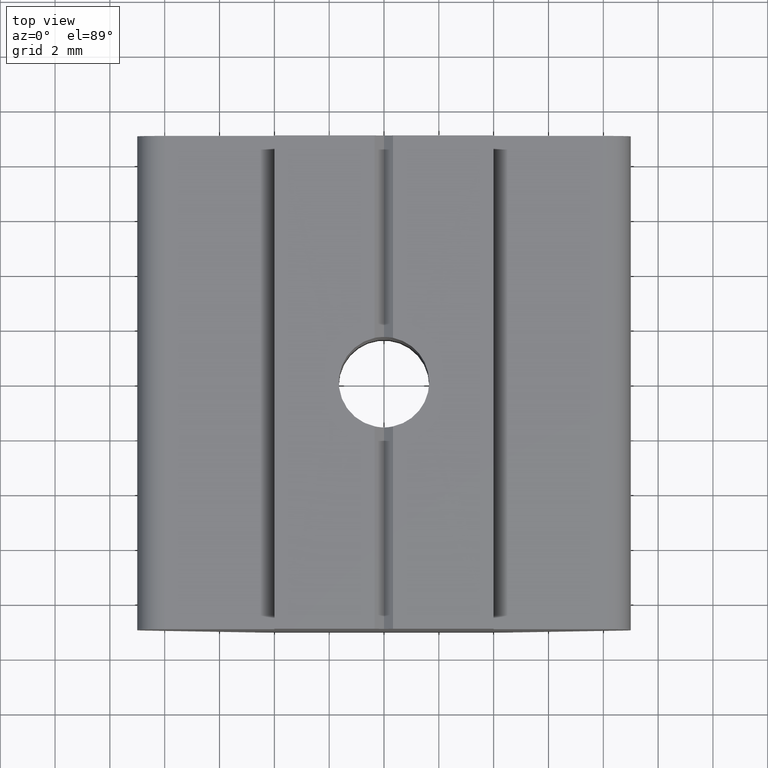
[diagram: clean part render]
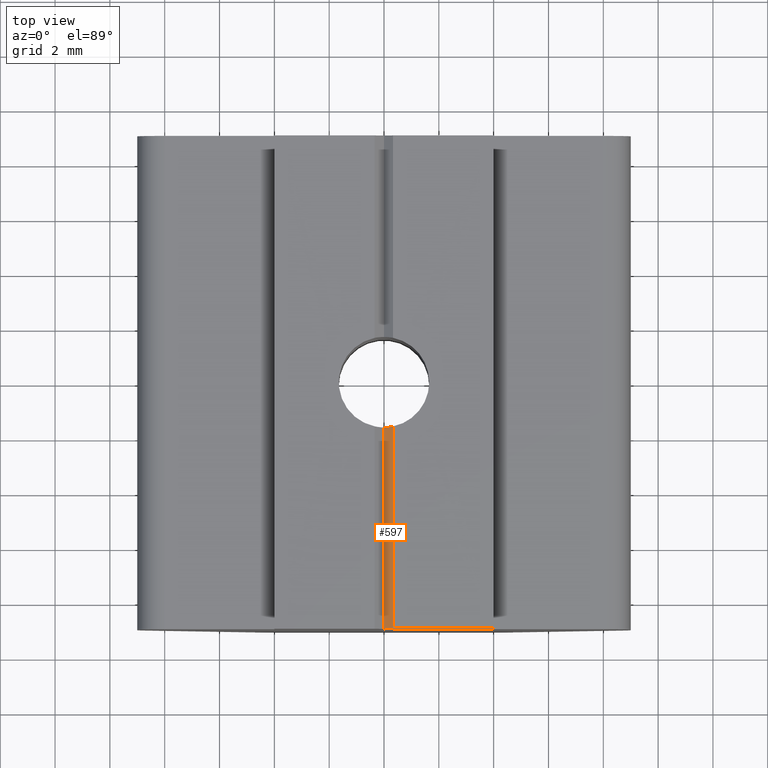
[diagram: same view with one face highlighted and labeled with its STEP entity id]
A machine part, top view. The second image highlights one B-rep face of the part: STEP entity #597.
In plain terms, the highlighted planar face has unit normal (-0.6411, 0, 0.7675).
Its self-contained STEP definition (entity closure, byte-faithful):
#507=CARTESIAN_POINT('',(0.328340585124039,-1.617001069931745,7.999998224000024));
#508=VERTEX_POINT('',#507);
#516=CARTESIAN_POINT('',(0.328340585124039,-9.0,7.999998224000025));
#517=VERTEX_POINT('',#516);
#518=CARTESIAN_POINT('',(0.328340585124039,-1.617001069931744,7.999998224000024));
#519=DIRECTION('',(0.0,-1.0,0.0));
#520=VECTOR('',#519,7.382998930068256);
#521=LINE('',#518,#520);
#522=EDGE_CURVE('',#508,#517,#521,.T.);
#566=CARTESIAN_POINT('',(0.328340585124039,9.0,7.999998224000023));
#567=DIRECTION('',(-0.641072358860515,4.699462E-017,0.767480443206871));
#568=DIRECTION('',(-0.767480443206871,-3.925436E-017,-0.641072358860515));
#569=AXIS2_PLACEMENT_3D('',#566,#567,#568);
#570=PLANE('',#569);
#571=ORIENTED_EDGE('',*,*,#522,.F.);
#572=CARTESIAN_POINT('',(8.015661E-009,-1.650000000000005,7.725737074885956));
#573=VERTEX_POINT('',#572);
#574=CARTESIAN_POINT('',(0.0,4.730650E-016,7.725737068190712));
#575=DIRECTION('',(0.641072358860515,-4.699462E-017,-0.767480443206871));
#576=DIRECTION('',(0.767480443206871,3.925436E-017,0.641072358860515));
#577=AXIS2_PLACEMENT_3D('',#574,#575,#576);
#578=ELLIPSE('',#577,2.149891915298289,1.650000000000000);
#579=EDGE_CURVE('',#508,#573,#578,.T.);
#580=ORIENTED_EDGE('',*,*,#579,.T.);
#581=CARTESIAN_POINT('',(8.015661E-009,-9.0,7.725737074885957));
#582=VERTEX_POINT('',#581);
#583=CARTESIAN_POINT('',(8.015661E-009,-1.650000000000000,7.725737074885956));
#584=DIRECTION('',(0.0,-1.0,0.0));
#585=VECTOR('',#584,7.350000000000000);
#586=LINE('',#583,#585);
#587=EDGE_CURVE('',#573,#582,#586,.T.);
#588=ORIENTED_EDGE('',*,*,#587,.T.);
#589=CARTESIAN_POINT('',(0.328340585124039,-9.0,7.999998224000025));
#590=DIRECTION('',(-0.767480443206871,0.0,-0.641072358860515));
#591=VECTOR('',#590,0.427816213448289);
#592=LINE('',#589,#591);
#593=EDGE_CURVE('',#517,#582,#592,.T.);
#594=ORIENTED_EDGE('',*,*,#593,.F.);
#595=EDGE_LOOP('',(#571,#580,#588,#594));
#596=FACE_OUTER_BOUND('',#595,.T.);
#597=ADVANCED_FACE('',(#596),#570,.T.);